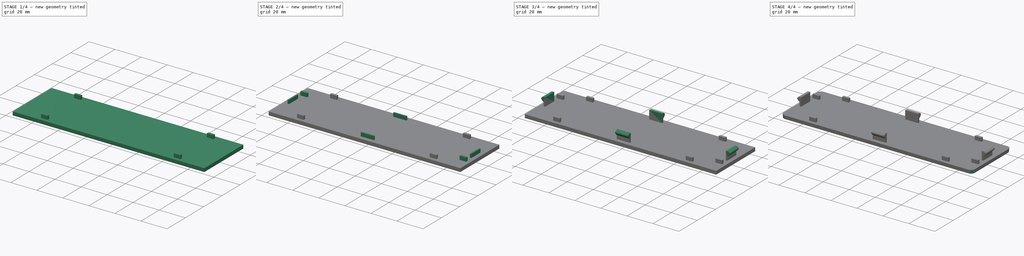
[diagram: build sequence overview — one tinted view per stage of 4, left to right]
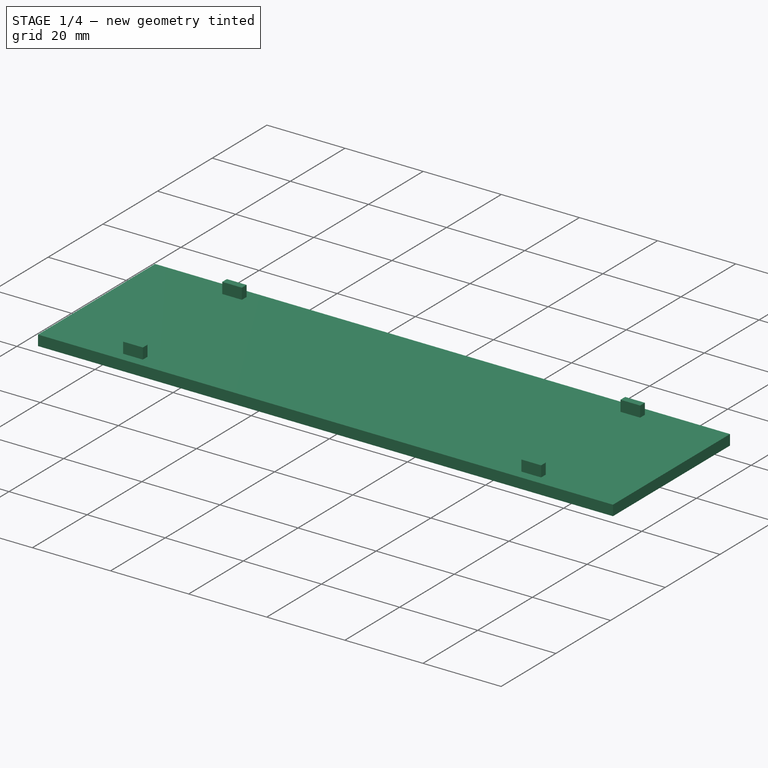
[diagram: stage 1 of 4 — iso view after this stage's code; geometry added in this stage tinted green]
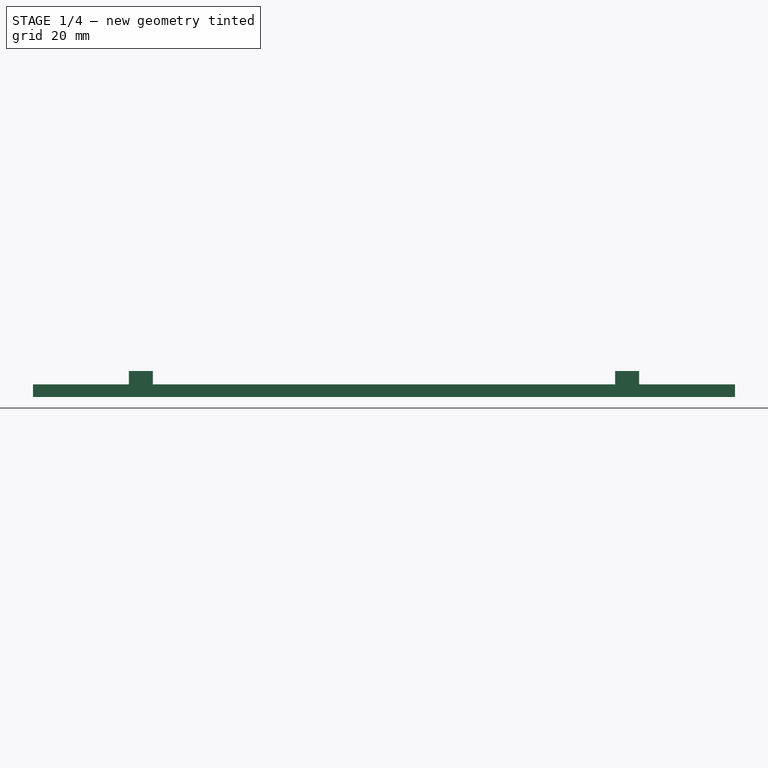
[diagram: stage 1 of 4 — front view after this stage's code; geometry added in this stage tinted green]
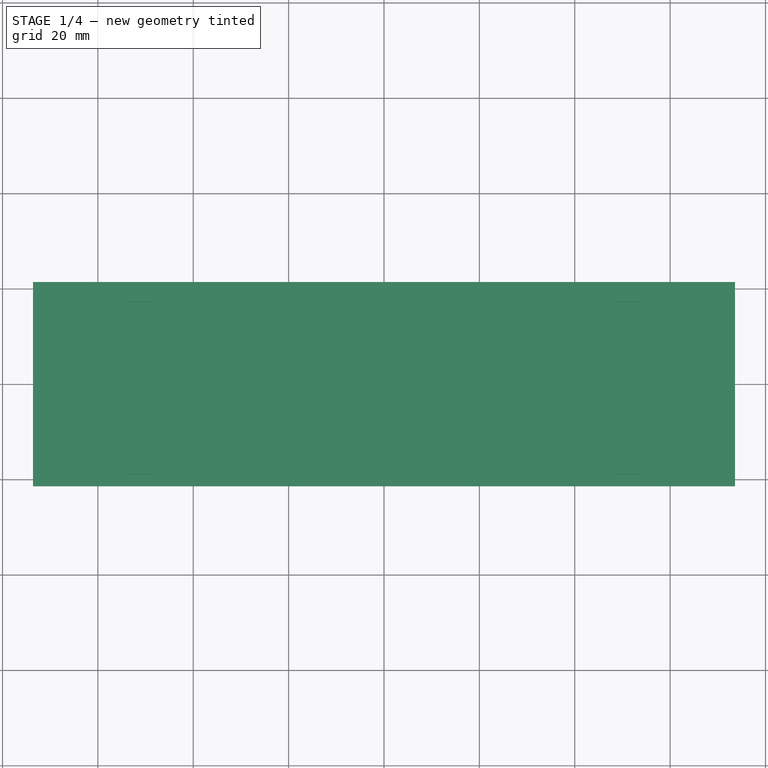
[diagram: stage 1 of 4 — top view after this stage's code; geometry added in this stage tinted green]
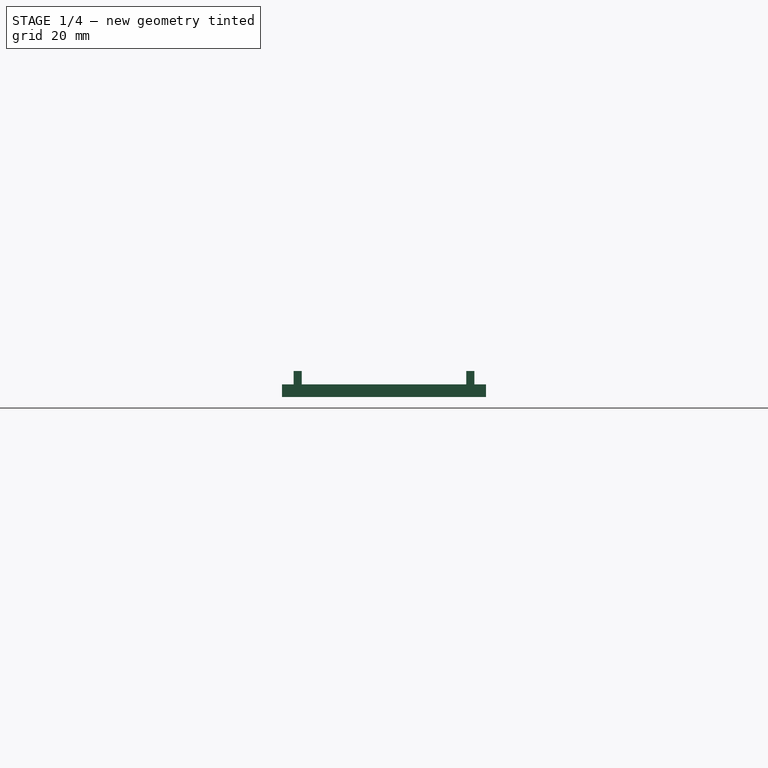
[diagram: stage 1 of 4 — right view after this stage's code; geometry added in this stage tinted green]
FCSTD DOCUMENT  (FreeCAD 1.0R39109 (Git))
Label: blanking_plate
License: All rights reserved
LicenseURL: https://en.wikipedia.org/wiki/All_rights_reserved
objects: Sketcher::SketchObject×5, PartDesign::Pad×5, PartDesign::Chamfer×2, Spreadsheet::Sheet×1, PartDesign::Draft×1, PartDesign::Fillet×1, PartDesign::Body×1
note: 38 computed .brp shape members not serialized (recipe doc carries the construction recipe); baked Part::Feature solids carry a one-line shape summary decoded from their .brp

FEATURE [Spreadsheet::Sheet] Spreadsheet  label="Measurements"
  cells = A1='Plate; A2='Width; B2(Width)=147.2; A3='Height; B3(Height)=42.8; A4='Thick; B4(Thick)=2.66; A6='4 main stubs; A7='Main_Stub_Distance_From_Top; B7(Main_Stub_Distance_From_Top)=2.44; A8='Main_Stub_Distance_From_Side; B8(Main_Stub_Distance_From_Side)=20.1; A9='Main_Stub_Width; B9(Main_Stub_Width)=5.04; A10='Main_Stub_Height; B10(Main_Stub_Height)=1.7; A11='Main_Stub_Thick; B11(Main_Stub_Thick)=2.8; A13='2 auxillary stubs; A14='Aux_Stub_Distance_From_Side; B14(Aux_Stub_Distance_From_Side)=2.56; A15='Aux_Stub_Distance_From_Top; B15(Aux_Stub_Distance_From_Top)=10; A16='Aux_Stub_Width; B16(Aux_Stub_Width)=5.04; A17='Aux_Stub_Height; B17(Aux_Stub_Height)=1.7; A18='Aux_Stub_Thick; B18(Aux_Stub_Thick)==Main_Stub_Thick; A20='Tabs; A21='Centered Top To Bottom; A22='Centered Left To Right; A23='Tab_Distance_From_Wide_Edge; B23(Tab_Distance_From_Wide_Edge)=3.016; A25='Tab_Width; B25(Tab_Width)=10.05; A26='Tab_Height_Lower; B26(Tab_Height_Lower)=1.12; A27='Tab_Height_Upper; B27(Tab_Height_Upper)=2.92; A28='Tab_Thick_Lower; B28(Tab_Thick_Lower)==Main_Stub_Thick; A29='Tab_Thick_Upper; B29(Tab_Thick_Upper)==Tab_Thick_Total - Tab_Thick_Lower; A30='Tab_Thick_Total; B30(Tab_Thick_Total)=6.465
FEATURE [Sketcher::SketchObject] Sketch  label="Plate_Sketch"
  ArcFitTolerance = 0
  AttachmentSupport = -> [XY_Plane]
  FullyConstrained = true
  MakeInternals = false
  MapMode = 5
  expr: Constraints[8] = <<Measurements>>.Width
  expr: Constraints[9] = <<Measurements>>.Height
  sketch-geometry (4):
    g0: LineSegment StartX=-73.6 StartY=21.4 StartZ=0 EndX=73.6 EndY=21.4 EndZ=0
    g1: LineSegment StartX=73.6 StartY=21.4 StartZ=0 EndX=73.6 EndY=-21.4 EndZ=0
    g2: LineSegment StartX=73.6 StartY=-21.4 StartZ=0 EndX=-73.6 EndY=-21.4 EndZ=0
    g3: LineSegment StartX=-73.6 StartY=-21.4 StartZ=0 EndX=-73.6 EndY=21.4 EndZ=0
  constraints (11):
    c: Coincident(g0,g1)
    c: Coincident(g1,g2)
    c: Coincident(g2,g3)
    c: Coincident(g3,g0)
    c: Horizontal(g0)
    c: Horizontal(g2)
    c: Vertical(g1)
    c: Vertical(g3)
    c: DistanceX(g0,g0) = 147.2
    c: DistanceY(g3,g3) = 42.8
    c: Symmetric(g0,g1,g-1)
FEATURE [PartDesign::Pad] Pad  label="Plate_Pad"
  Direction = (0,0,1)
  Length = 2.66
  Length2 = 10
  Profile = -> Sketch
  ReferenceAxis = -> Sketch [N_Axis]
  Suppressed = false
  Type = 0
  expr: Length = <<Measurements>>.Thick
FEATURE [Sketcher::SketchObject] Sketch001  label="Main_Stub_Sketch"
  ArcFitTolerance = 0
  AttachmentSupport = -> [Pad]
  ExternalGeometry = -> [Pad]
  FullyConstrained = true
  MakeInternals = false
  MapMode = 5
  Placement = pos=(0,0,2.66) rot=(0,0,1;0rad)
  expr: Constraints[10] = <<Measurements>>.Main_Stub_Distance_From_Top
  expr: Constraints[11] = <<Measurements>>.Main_Stub_Distance_From_Side
  expr: Constraints[36] = <<Measurements>>.Main_Stub_Width
  expr: Constraints[37] = <<Measurements>>.Main_Stub_Height
  expr: Constraints[38] = <<Measurements>>.Main_Stub_Distance_From_Side
  expr: Constraints[39] = <<Measurements>>.Main_Stub_Distance_From_Top
  expr: Constraints[40] = <<Measurements>>.Main_Stub_Width
  expr: Constraints[41] = <<Measurements>>.Main_Stub_Height
  expr: Constraints[42] = <<Measurements>>.Main_Stub_Distance_From_Side
  expr: Constraints[43] = <<Measurements>>.Main_Stub_Distance_From_Top
  expr: Constraints[44] = <<Measurements>>.Main_Stub_Width
  expr: Constraints[45] = <<Measurements>>.Main_Stub_Height
  expr: Constraints[46] = <<Measurements>>.Main_Stub_Distance_From_Side
  expr: Constraints[47] = <<Measurements>>.Main_Stub_Distance_From_Top
  expr: Constraints[8] = <<Measurements>>.Main_Stub_Width
  expr: Constraints[9] = <<Measurements>>.Main_Stub_Height
  sketch-geometry (16):
    g0: LineSegment StartX=-53.5 StartY=18.96 StartZ=0 EndX=-48.46 EndY=18.96 EndZ=0
    g1: LineSegment StartX=-48.46 StartY=18.96 StartZ=0 EndX=-48.46 EndY=17.26 EndZ=0
    g2: LineSegment StartX=-48.46 StartY=17.26 StartZ=0 EndX=-53.5 EndY=17.26 EndZ=0
    g3: LineSegment StartX=-53.5 StartY=17.26 StartZ=0 EndX=-53.5 EndY=18.96 EndZ=0
    g4: LineSegment StartX=48.46 StartY=18.96 StartZ=0 EndX=48.46 EndY=17.26 EndZ=0
    g5: LineSegment StartX=48.46 StartY=17.26 StartZ=0 EndX=53.5 EndY=17.26 EndZ=0
    g6: LineSegment StartX=53.5 StartY=17.26 StartZ=0 EndX=53.5 EndY=18.96 EndZ=0
    g7: LineSegment StartX=53.5 StartY=18.96 StartZ=0 EndX=48.46 EndY=18.96 EndZ=0
    g8: LineSegment StartX=-53.5 StartY=-17.26 StartZ=0 EndX=-53.5 EndY=-18.96 EndZ=0
    g9: LineSegment StartX=-53.5 StartY=-18.96 StartZ=0 EndX=-48.46 EndY=-18.96 EndZ=0
    g10: LineSegment StartX=-48.46 StartY=-18.96 StartZ=0 EndX=-48.46 EndY=-17.26 EndZ=0
    g11: LineSegment StartX=-48.46 StartY=-17.26 StartZ=0 EndX=-53.5 EndY=-17.26 EndZ=0
    g12: LineSegment StartX=48.46 StartY=-17.26 StartZ=0 EndX=48.46 EndY=-18.96 EndZ=0
    g13: LineSegment StartX=48.46 StartY=-18.96 StartZ=0 EndX=53.5 EndY=-18.96 EndZ=0
    g14: LineSegment StartX=53.5 StartY=-18.96 StartZ=0 EndX=53.5 EndY=-17.26 EndZ=0
    g15: LineSegment StartX=53.5 StartY=-17.26 StartZ=0 EndX=48.46 EndY=-17.26 EndZ=0
  constraints (48):
    c: Coincident(g0,g1)
    c: Coincident(g1,g2)
    c: Coincident(g2,g3)
    c: Coincident(g3,g0)
    c: Horizontal(g0)
    c: Horizontal(g2)
    c: Vertical(g1)
    c: Vertical(g3)
    c: DistanceX(g0,g0) = 5.04
    c: DistanceY(g3,g3) = 1.7
    c: DistanceY(g0,g-3) = 2.44
    c: DistanceX(g-3,g0) = 20.1
    c: Coincident(g4,g5)
    c: Coincident(g5,g6)
    c: Coincident(g6,g7)
    c: Coincident(g7,g4)
    c: Vertical(g4)
    c: Vertical(g6)
    c: Horizontal(g5)
    c: Horizontal(g7)
    c: Coincident(g8,g9)
    c: Coincident(g9,g10)
    c: Coincident(g10,g11)
    c: Coincident(g11,g8)
    c: Vertical(g8)
    c: Vertical(g10)
    c: Horizontal(g9)
    c: Horizontal(g11)
    c: Coincident(g12,g13)
    c: Coincident(g13,g14)
    c: Coincident(g14,g15)
    c: Coincident(g15,g12)
    c: Vertical(g12)
    c: Vertical(g14)
    c: Horizontal(g13)
    c: Horizontal(g15)
    c: DistanceX(g7,g7) = 5.04
    c: DistanceY(g4,g4) = 1.7
    c: DistanceX(g6,g-4) = 20.1
    c: DistanceY(g6,g-4) = 2.44
    c: DistanceX(g11,g11) = 5.04
    c: DistanceY(g8,g8) = 1.7
    c: DistanceX(g-5,g8) = 20.1
    c: DistanceY(g-5,g8) = 2.44
    c: DistanceX(g15,g15) = 5.04
    c: DistanceY(g12,g12) = 1.7
    c: DistanceX(g13,g-6) = 20.1
    c: DistanceY(g-6,g13) = 2.44
FEATURE [PartDesign::Pad] Pad001  label="Main_Stub_Pad"
  BaseFeature = -> Pad
  Direction = (0,0,1)
  Length = 2.8
  Length2 = 10
  Profile = -> Sketch001
  ReferenceAxis = -> Sketch001 [N_Axis]
  Suppressed = false
  Type = 0
  expr: Length = <<Measurements>>.Main_Stub_Thick
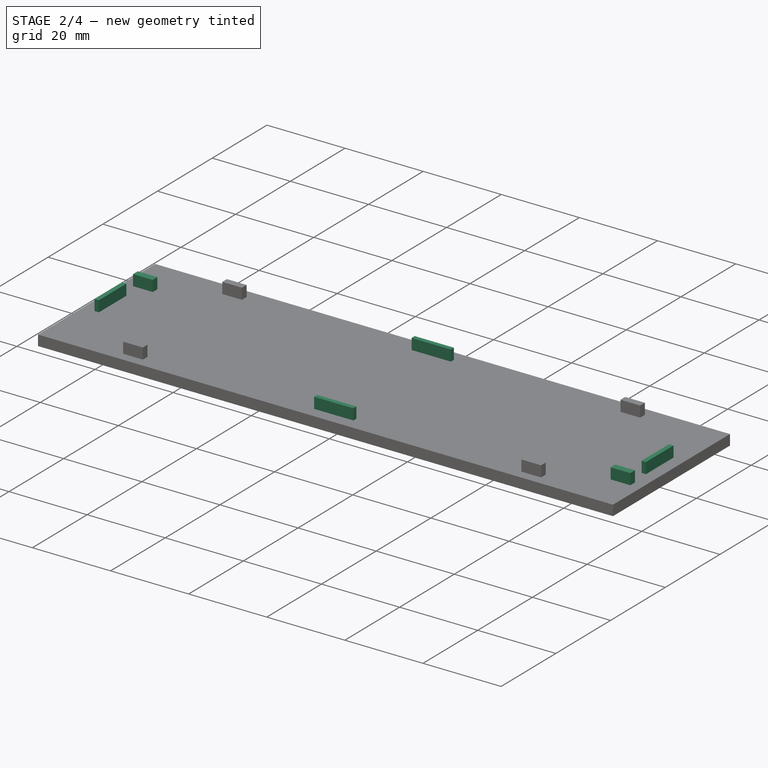
[diagram: stage 2 of 4 — iso view after this stage's code; geometry added in this stage tinted green]
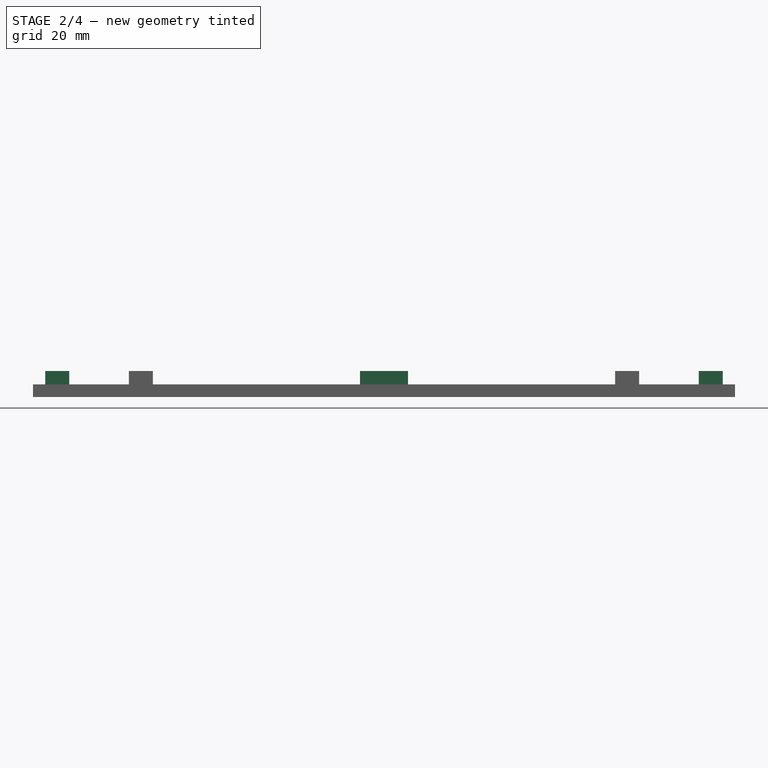
[diagram: stage 2 of 4 — front view after this stage's code; geometry added in this stage tinted green]
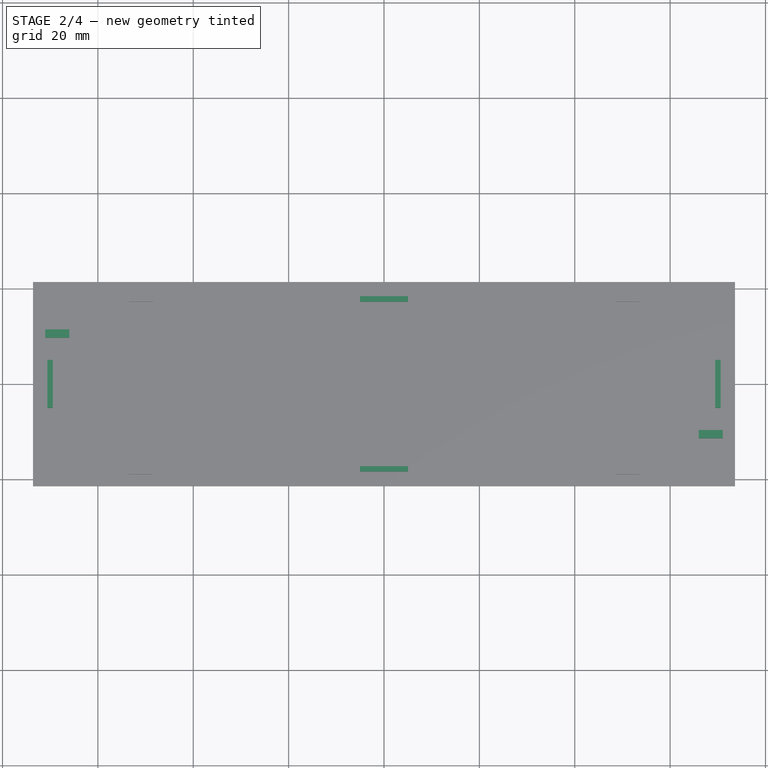
[diagram: stage 2 of 4 — top view after this stage's code; geometry added in this stage tinted green]
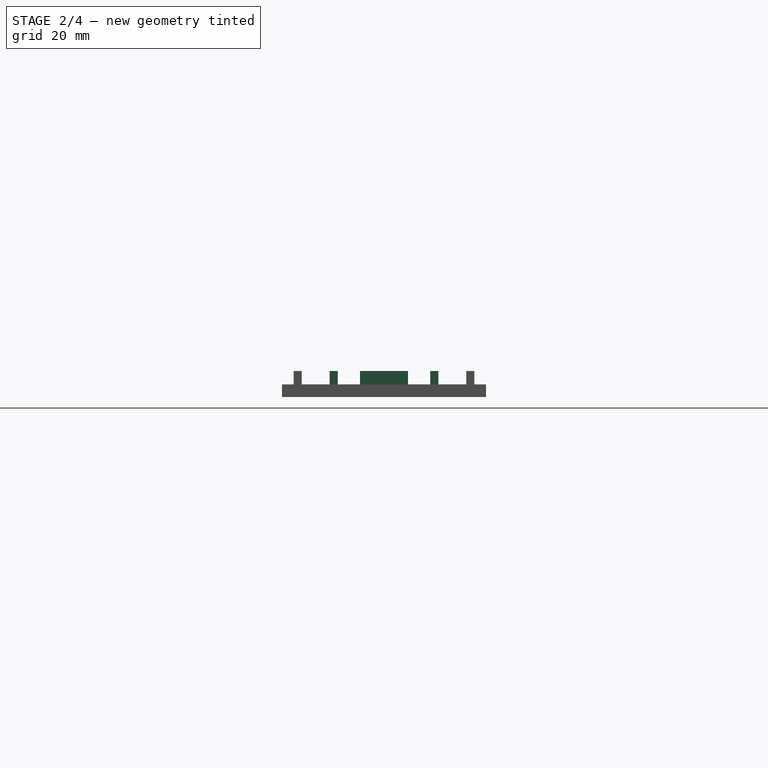
[diagram: stage 2 of 4 — right view after this stage's code; geometry added in this stage tinted green]
FEATURE [Sketcher::SketchObject] Sketch002  label="Aux_Stub_Sketch"
  ArcFitTolerance = 1e-06
  AttachmentSupport = -> [Pad001]
  ExternalGeometry = -> [Pad001]
  FullyConstrained = true
  MakeInternals = false
  MapMode = 5
  Placement = pos=(0,0,2.66) rot=(0,0,1;0rad)
  expr: Constraints[16] = <<Measurements>>.Aux_Stub_Width
  expr: Constraints[17] = <<Measurements>>.Aux_Stub_Height
  expr: Constraints[18] = <<Measurements>>.Aux_Stub_Distance_From_Side
  expr: Constraints[19] = <<Measurements>>.Aux_Stub_Distance_From_Top
  expr: Constraints[20] = <<Measurements>>.Aux_Stub_Width
  expr: Constraints[21] = <<Measurements>>.Aux_Stub_Height
  expr: Constraints[22] = <<Measurements>>.Aux_Stub_Distance_From_Side
  expr: Constraints[23] = <<Measurements>>.Aux_Stub_Distance_From_Top
  sketch-geometry (8):
    g0: LineSegment StartX=-71.04 StartY=11.4 StartZ=0 EndX=-71.04 EndY=9.7 EndZ=0
    g1: LineSegment StartX=-71.04 StartY=9.7 StartZ=0 EndX=-66 EndY=9.7 EndZ=0
    g2: LineSegment StartX=-66 StartY=9.7 StartZ=0 EndX=-66 EndY=11.4 EndZ=0
    g3: LineSegment StartX=-66 StartY=11.4 StartZ=0 EndX=-71.04 EndY=11.4 EndZ=0
    g4: LineSegment StartX=66 StartY=-9.7 StartZ=0 EndX=66 EndY=-11.4 EndZ=0
    g5: LineSegment StartX=66 StartY=-11.4 StartZ=0 EndX=71.04 EndY=-11.4 EndZ=0
    g6: LineSegment StartX=71.04 StartY=-11.4 StartZ=0 EndX=71.04 EndY=-9.7 EndZ=0
    g7: LineSegment StartX=71.04 StartY=-9.7 StartZ=0 EndX=66 EndY=-9.7 EndZ=0
  constraints (24):
    c: Coincident(g0,g1)
    c: Coincident(g1,g2)
    c: Coincident(g2,g3)
    c: Coincident(g3,g0)
    c: Vertical(g0)
    c: Vertical(g2)
    c: Horizontal(g1)
    c: Horizontal(g3)
    c: Coincident(g4,g5)
    c: Coincident(g5,g6)
    c: Coincident(g6,g7)
    c: Coincident(g7,g4)
    c: Vertical(g4)
    c: Vertical(g6)
    c: Horizontal(g5)
    c: Horizontal(g7)
    c: DistanceX(g3,g3) = 5.04
    c: DistanceY(g0,g0) = 1.7
    c: DistanceX(g-3,g0) = 2.56
    c: DistanceY(g0,g-3) = 10
    c: DistanceX(g7,g7) = 5.04
    c: DistanceY(g4,g4) = 1.7
    c: DistanceX(g5,g-4) = 2.56
    c: DistanceY(g-4,g5) = 10
FEATURE [PartDesign::Pad] Pad002  label="Aux_Stub_Pad"
  BaseFeature = -> Pad001
  Direction = (0,0,1)
  Length = 2.8
  Length2 = 10
  Profile = -> Sketch002
  ReferenceAxis = -> Sketch002 [N_Axis]
  Refine = true
  Suppressed = false
  Type = 0
  expr: Length = <<Measurements>>.Aux_Stub_Thick
FEATURE [Sketcher::SketchObject] Sketch003  label="Tabs_Lower_Sketch"
  ArcFitTolerance = 1e-06
  AttachmentSupport = -> [Pad002]
  ExternalGeometry = -> [Pad002]
  FullyConstrained = true
  MakeInternals = false
  MapMode = 5
  Placement = pos=(0,0,2.66) rot=(0,0,1;0rad)
  expr: Constraints[32] = <<Measurements>>.Tab_Width
  expr: Constraints[33] = <<Measurements>>.Tab_Width
  expr: Constraints[34] = <<Measurements>>.Tab_Width
  expr: Constraints[35] = <<Measurements>>.Tab_Width
  expr: Constraints[36] = <<Measurements>>.Tab_Height_Lower
  expr: Constraints[37] = <<Measurements>>.Tab_Height_Lower
  expr: Constraints[38] = <<Measurements>>.Tab_Height_Lower
  expr: Constraints[39] = <<Measurements>>.Tab_Height_Lower
  expr: Constraints[40] = <<Measurements>>.Tab_Distance_From_Wide_Edge
  expr: Constraints[41] = <<Measurements>>.Tab_Distance_From_Wide_Edge
  expr: Constraints[42] = <<Measurements>>.Tab_Distance_From_Wide_Edge
  expr: Constraints[43] = <<Measurements>>.Tab_Distance_From_Wide_Edge
  sketch-geometry (20):
    g0: LineSegment StartX=-5.025 StartY=18.384 StartZ=0 EndX=-5.025 EndY=17.264 EndZ=0
    g1: LineSegment StartX=-5.025 StartY=17.264 StartZ=0 EndX=5.025 EndY=17.264 EndZ=0
    g2: LineSegment StartX=5.025 StartY=17.264 StartZ=0 EndX=5.025 EndY=18.384 EndZ=0
    g3: LineSegment StartX=5.025 StartY=18.384 StartZ=0 EndX=-5.025 EndY=18.384 EndZ=0
    g4: LineSegment StartX=-70.584 StartY=5.025 StartZ=0 EndX=-70.584 EndY=-5.025 EndZ=0
    g5: LineSegment StartX=-70.584 StartY=-5.025 StartZ=0 EndX=-69.464 EndY=-5.025 EndZ=0
    g6: LineSegment StartX=-69.464 StartY=-5.025 StartZ=0 EndX=-69.464 EndY=5.025 EndZ=0
    g7: LineSegment StartX=-69.464 StartY=5.025 StartZ=0 EndX=-70.584 EndY=5.025 EndZ=0
    g8: LineSegment StartX=-5.025 StartY=-17.264 StartZ=0 EndX=-5.025 EndY=-18.384 EndZ=0
    g9: LineSegment StartX=-5.025 StartY=-18.384 StartZ=0 EndX=5.025 EndY=-18.384 EndZ=0
    g10: LineSegment StartX=5.025 StartY=-18.384 StartZ=0 EndX=5.025 EndY=-17.264 EndZ=0
    g11: LineSegment StartX=5.025 StartY=-17.264 StartZ=0 EndX=-5.025 EndY=-17.264 EndZ=0
    g12: LineSegment StartX=69.464 StartY=5.025 StartZ=0 EndX=69.464 EndY=-5.025 EndZ=0
    g13: LineSegment StartX=69.464 StartY=-5.025 StartZ=0 EndX=70.584 EndY=-5.025 EndZ=0
    g14: LineSegment StartX=70.584 StartY=-5.025 StartZ=0 EndX=70.584 EndY=5.025 EndZ=0
    g15: LineSegment StartX=70.584 StartY=5.025 StartZ=0 EndX=69.464 EndY=5.025 EndZ=0
    g16: GeomPoint X=0 Y=17.264 Z=0
    g17: GeomPoint X=0 Y=-17.264 Z=0
    g18: GeomPoint X=-69.464 Y=0 Z=0
    g19: GeomPoint X=69.464 Y=0 Z=0
  constraints (52):
    c: Coincident(g0,g1)
    c: Coincident(g1,g2)
    c: Coincident(g2,g3)
    c: Coincident(g3,g0)
    c: Vertical(g0)
    c: Vertical(g2)
    c: Horizontal(g1)
    c: Horizontal(g3)
    c: Coincident(g4,g5)
    c: Coincident(g5,g6)
    c: Coincident(g6,g7)
    c: Coincident(g7,g4)
    c: Vertical(g4)
    c: Vertical(g6)
    c: Horizontal(g5)
    c: Horizontal(g7)
    c: Coincident(g8,g9)
    c: Coincident(g9,g10)
    c: Coincident(g10,g11)
    c: Coincident(g11,g8)
    c: Vertical(g8)
    c: Vertical(g10)
    c: Horizontal(g9)
    c: Horizontal(g11)
    c: Coincident(g12,g13)
    c: Coincident(g13,g14)
    c: Coincident(g14,g15)
    c: Coincident(g15,g12)
    c: Vertical(g12)
    c: Vertical(g14)
    c: Horizontal(g13)
    c: Horizontal(g15)
    c: DistanceX(g3,g3) = 10.05
    c: DistanceX(g11,g11) = 10.05
    c: DistanceY(g12,g12) = 10.05
    c: DistanceY(g6,g6) = 10.05
    c: DistanceX(g7,g7) = 1.12
    c: DistanceY(g0,g0) = 1.12
    c: DistanceY(g8,g8) = 1.12
    c: DistanceX(g13,g13) = 1.12
    c: DistanceY(g0,g-3) = 3.016
    c: DistanceY(g-4,g9) = 3.016
    c: DistanceX(g13,g-4) = 3.016
    c: DistanceX(g-3,g4) = 3.016
    c: Symmetric(g12,g12,g19)
    c: Symmetric(g0,g1,g16)
    c: Symmetric(g8,g10,g17)
    c: Symmetric(g6,g5,g18)
    c: Horizontal(g18,g-1)
    c: Vertical(g16,g17)
    c: Vertical(g17,g-1)
    c: Horizontal(g19,g-1)
FEATURE [PartDesign::Pad] Pad003  label="Tabs_Lower_Pad"
  BaseFeature = -> Pad002
  Direction = (0,0,1)
  Length = 2.8
  Length2 = 10
  Profile = -> Sketch003
  ReferenceAxis = -> Sketch003 [N_Axis]
  Refine = true
  Suppressed = false
  Type = 0
  expr: Length = <<Measurements>>.Tab_Thick_Lower
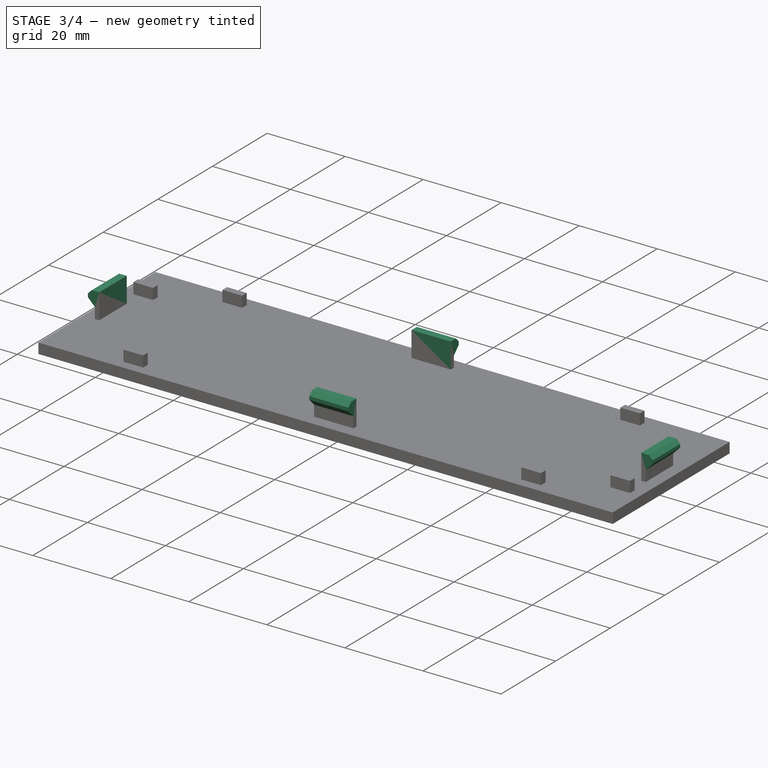
[diagram: stage 3 of 4 — iso view after this stage's code; geometry added in this stage tinted green]
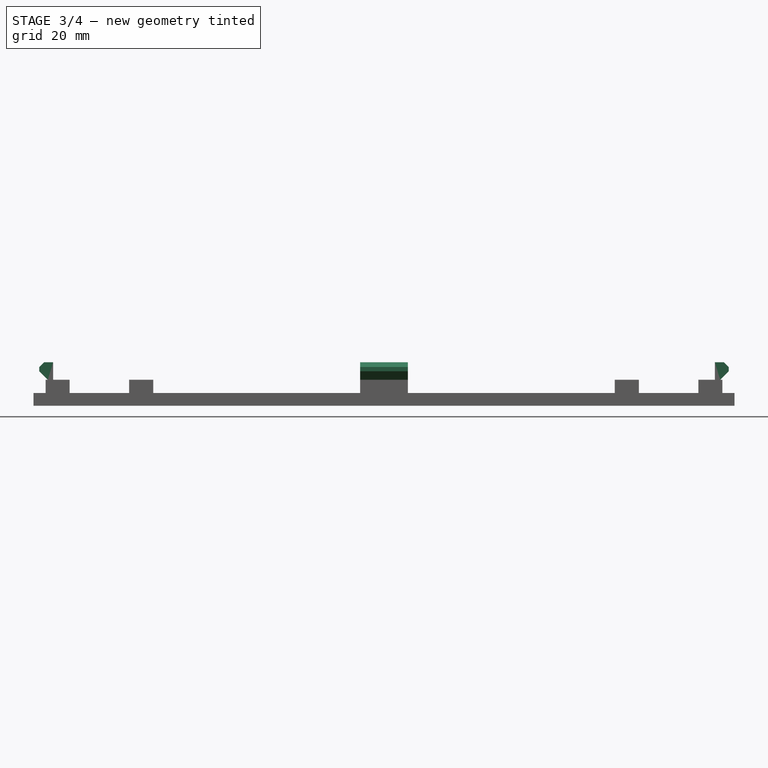
[diagram: stage 3 of 4 — front view after this stage's code; geometry added in this stage tinted green]
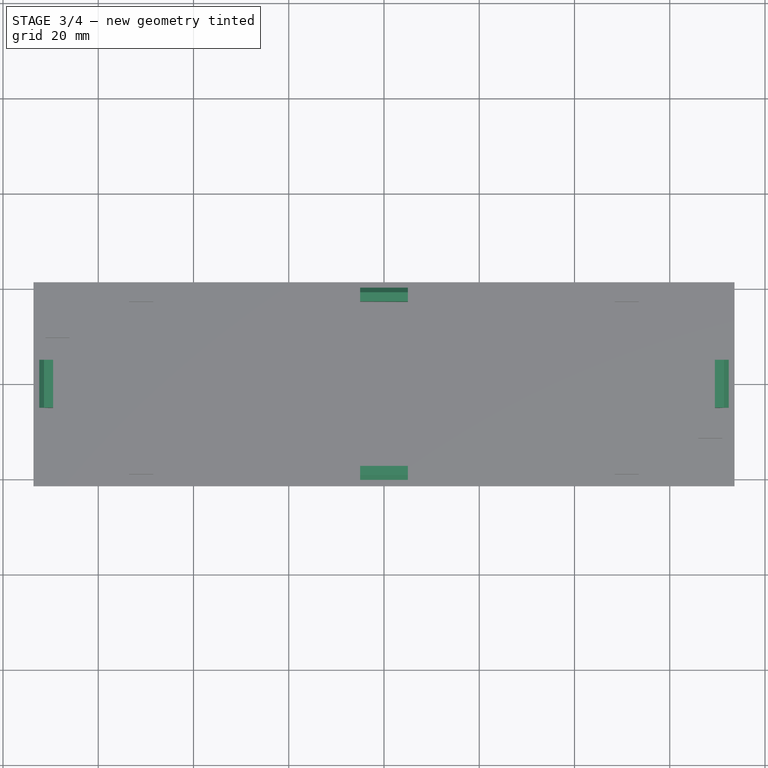
[diagram: stage 3 of 4 — top view after this stage's code; geometry added in this stage tinted green]
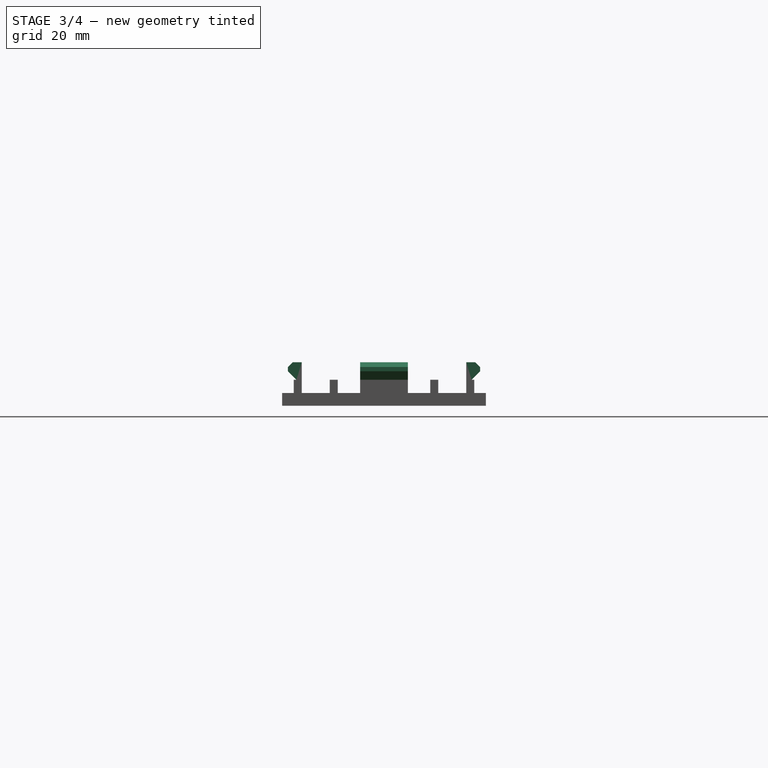
[diagram: stage 3 of 4 — right view after this stage's code; geometry added in this stage tinted green]
FEATURE [Sketcher::SketchObject] Sketch004  label="Tabs_Upper_Sketch"
  ArcFitTolerance = 1e-06
  AttachmentSupport = -> [Pad003]
  ExternalGeometry = -> [Pad003]
  FullyConstrained = true
  MakeInternals = false
  MapMode = 5
  Placement = pos=(0,0,5.46) rot=(0,0,1;0rad)
  expr: Constraints[32] = <<Measurements>>.Tab_Height_Upper
  expr: Constraints[33] = <<Measurements>>.Tab_Height_Upper
  expr: Constraints[34] = <<Measurements>>.Tab_Height_Upper
  expr: Constraints[35] = <<Measurements>>.Tab_Height_Upper
  sketch-geometry (16):
    g0: LineSegment StartX=-5.025 StartY=17.264 StartZ=0 EndX=5.025 EndY=17.264 EndZ=0
    g1: LineSegment StartX=5.025 StartY=17.264 StartZ=0 EndX=5.025 EndY=20.184 EndZ=0
    g2: LineSegment StartX=-5.025 StartY=17.264 StartZ=0 EndX=-5.025 EndY=20.184 EndZ=0
    g3: LineSegment StartX=-5.025 StartY=20.184 StartZ=0 EndX=5.025 EndY=20.184 EndZ=0
    g4: LineSegment StartX=-69.464 StartY=5.025 StartZ=0 EndX=-72.384 EndY=5.025 EndZ=0
    g5: LineSegment StartX=-69.464 StartY=-5.025 StartZ=0 EndX=-72.384 EndY=-5.025 EndZ=0
    g6: LineSegment StartX=-72.384 StartY=5.025 StartZ=0 EndX=-72.384 EndY=-5.025 EndZ=0
    g7: LineSegment StartX=-5.025 StartY=-17.264 StartZ=0 EndX=5.025 EndY=-17.264 EndZ=0
    g8: LineSegment StartX=-5.025 StartY=-17.264 StartZ=0 EndX=-5.025 EndY=-20.184 EndZ=0
    g9: LineSegment StartX=5.025 StartY=-17.264 StartZ=0 EndX=5.025 EndY=-20.184 EndZ=0
    g10: LineSegment StartX=-5.025 StartY=-20.184 StartZ=0 EndX=5.025 EndY=-20.184 EndZ=0
    g11: LineSegment StartX=69.464 StartY=5.025 StartZ=0 EndX=72.384 EndY=5.025 EndZ=0
    g12: LineSegment StartX=69.464 StartY=-5.025 StartZ=0 EndX=72.384 EndY=-5.025 EndZ=0
    g13: LineSegment StartX=72.384 StartY=5.025 StartZ=0 EndX=72.384 EndY=-5.025 EndZ=0
    g14: LineSegment StartX=-69.464 StartY=5.025 StartZ=0 EndX=-69.464 EndY=-5.025 EndZ=0
    g15: LineSegment StartX=69.464 StartY=5.025 StartZ=0 EndX=69.464 EndY=-5.025 EndZ=0
  constraints (40):
    c: Coincident(g0,g-9)
    c: Coincident(g0,g-10)
    c: Coincident(g1,g0)
    c: Vertical(g1)
    c: Coincident(g2,g0)
    c: Vertical(g2)
    c: Coincident(g3,g2)
    c: Coincident(g3,g1)
    c: Horizontal(g3)
    c: Coincident(g4,g-3)
    c: Horizontal(g4)
    c: Coincident(g5,g-4)
    c: Horizontal(g5)
    c: Coincident(g6,g4)
    c: Coincident(g6,g5)
    c: Vertical(g6)
    c: Coincident(g7,g-5)
    c: Coincident(g7,g-6)
    c: Coincident(g8,g7)
    c: Vertical(g8)
    c: Coincident(g9,g7)
    c: Vertical(g9)
    c: Coincident(g10,g8)
    c: Coincident(g10,g9)
    c: Horizontal(g10)
    c: Coincident(g11,g-8)
    c: Horizontal(g11)
    c: Coincident(g12,g-7)
    c: Horizontal(g12)
    c: Coincident(g13,g11)
    c: Coincident(g13,g12)
    c: Vertical(g13)
    c: DistanceY(g1,g1) = 2.92
    c: DistanceX(g11,g11) = 2.92
    c: DistanceY(g8,g8) = 2.92
    c: DistanceX(g4,g4) = 2.92
    c: Coincident(g14,g4)
    c: Coincident(g14,g5)
    c: Coincident(g15,g11)
    c: Coincident(g15,g12)
FEATURE [PartDesign::Pad] Pad004  label="Tabs_Upper_Pad"
  BaseFeature = -> Pad003
  Direction = (0,0,1)
  Length = 3.665
  Length2 = 10
  Profile = -> Sketch004
  ReferenceAxis = -> Sketch004 [N_Axis]
  Refine = true
  Suppressed = false
  Type = 0
  expr: Length = <<Measurements>>.Tab_Thick_Upper
FEATURE [PartDesign::Chamfer] Chamfer  label="Tab_Lower_Chamfer"
  Angle = 45
  Base = -> Pad004 [Edge123,Edge114,Edge117,Edge120]
  BaseFeature = -> Pad004
  ChamferType = 0
  FlipDirection = false
  Refine = true
  Size = 1.79
  Size2 = 1
  SupportTransform = false
  Suppressed = false
  UseAllEdges = false
FEATURE [PartDesign::Chamfer] Chamfer001  label="Tab_Upper_Chamfer"
  Angle = 45
  Base = -> Chamfer [Edge164,Edge162,Edge19,Edge166]
  BaseFeature = -> Chamfer
  ChamferType = 0
  FlipDirection = false
  Refine = true
  Size = 1
  Size2 = 1
  SupportTransform = false
  Suppressed = false
  UseAllEdges = false
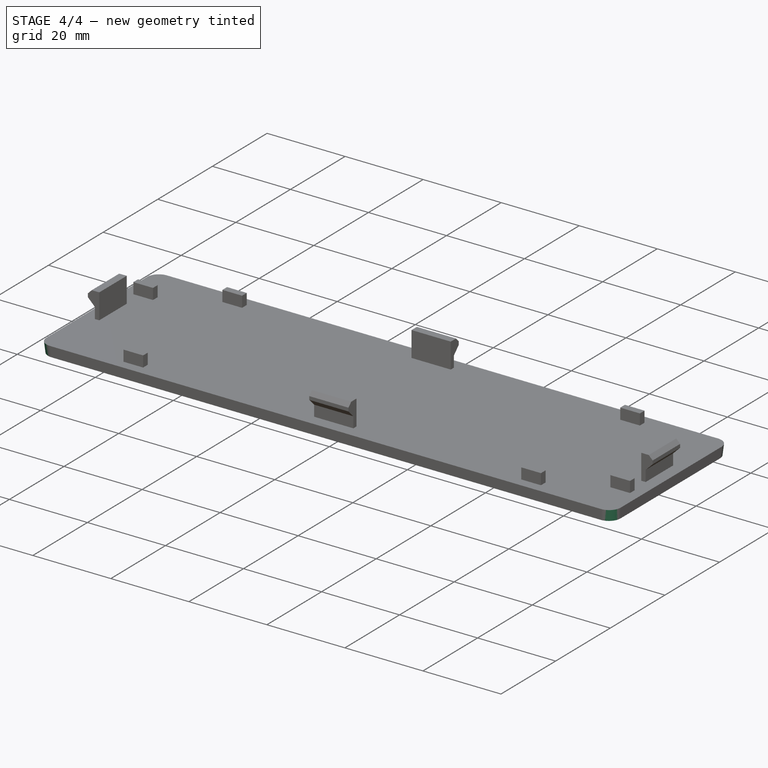
[diagram: stage 4 of 4 — iso view after this stage's code; geometry added in this stage tinted green]
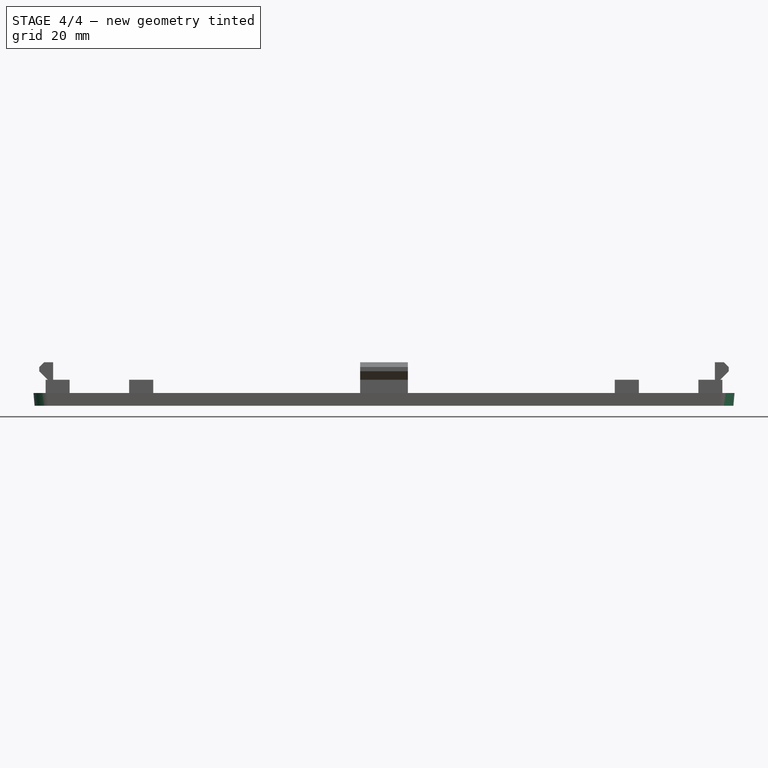
[diagram: stage 4 of 4 — front view after this stage's code; geometry added in this stage tinted green]
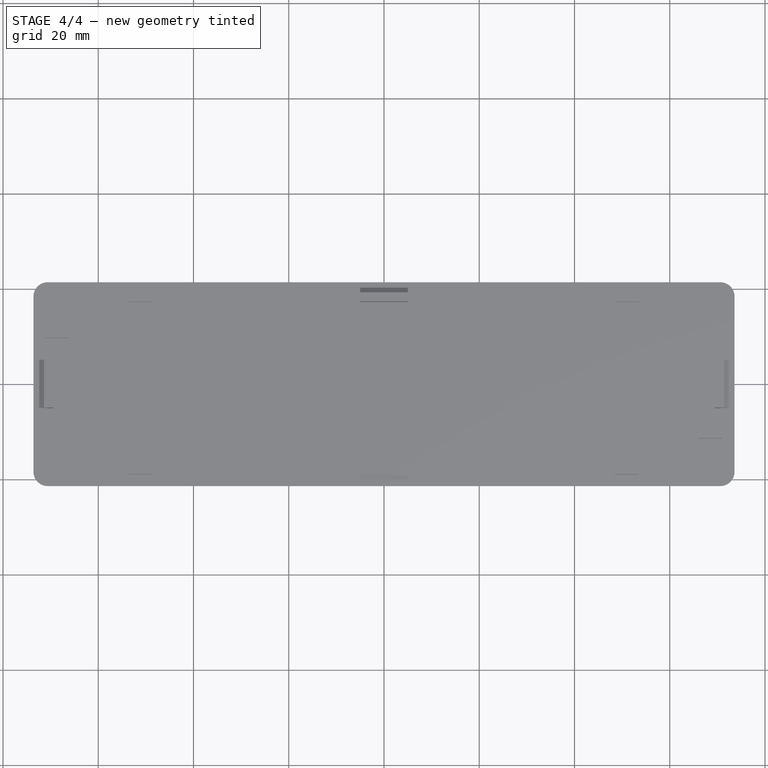
[diagram: stage 4 of 4 — top view after this stage's code; geometry added in this stage tinted green]
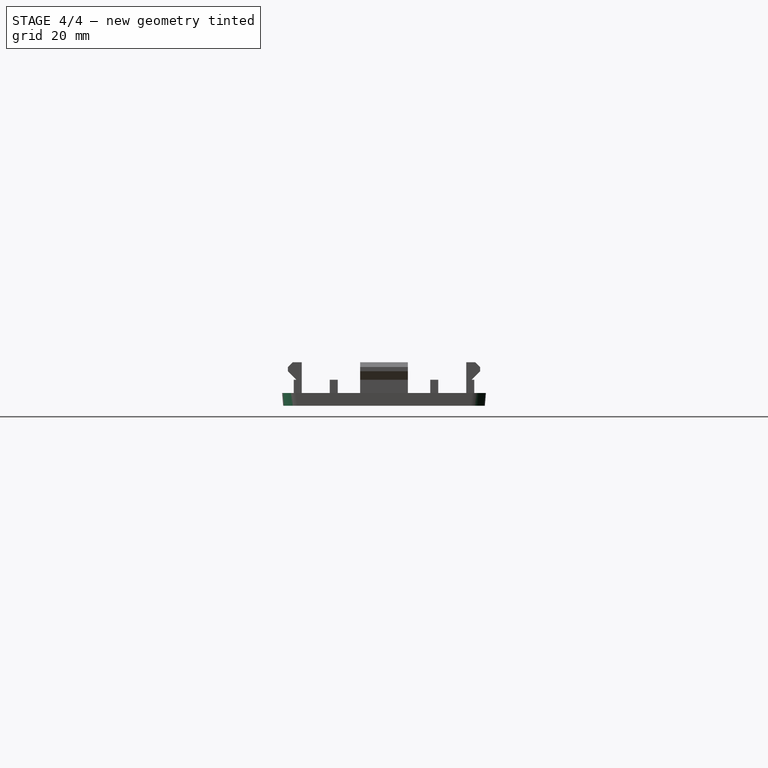
[diagram: stage 4 of 4 — right view after this stage's code; geometry added in this stage tinted green]
FEATURE [PartDesign::Draft] Draft  label="Plate_Draft"
  Angle = 5
  Base = -> Chamfer001 [Face14,Face13,Face11,Face12]
  BaseFeature = -> Chamfer001
  NeutralPlane = -> Chamfer001 [Face9]
  Refine = true
  Reversed = true
  SupportTransform = false
  Suppressed = false
FEATURE [PartDesign::Fillet] Fillet  label="Plate_Fillet"
  Base = -> Draft [Edge65,Edge66,Edge68,Edge70]
  BaseFeature = -> Draft
  Radius = 3
  Refine = true
  SupportTransform = false
  Suppressed = false
  UseAllEdges = false
FEATURE [PartDesign::Body] Body  label="PCjrBlankingPlate"
  AllowCompound = false
  Group = -> [Sketch,Pad,Sketch001,Pad001,Sketch002,Pad002,Sketch003,Pad003,Sketch004,Pad004,Chamfer,Chamfer001,Draft,Fillet]
  Origin = -> Origin
  Tip = -> Fillet
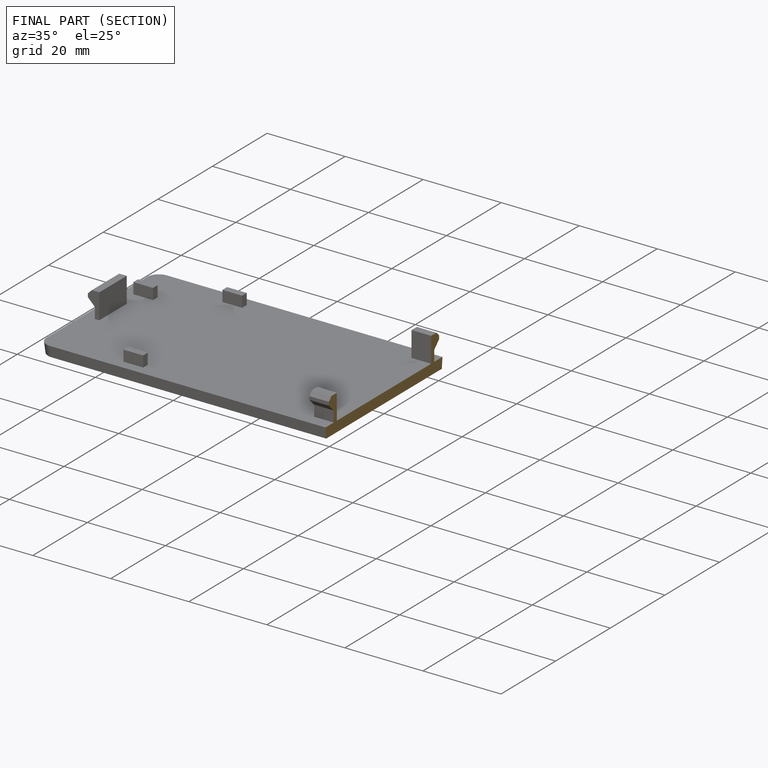
[diagram: finished part — half-section view (interior)]
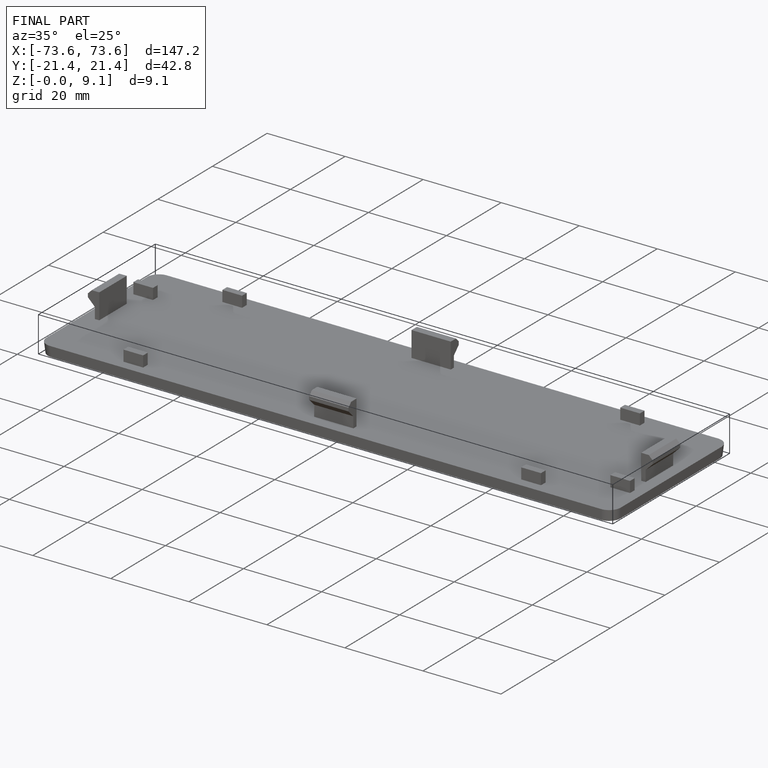
[diagram: finished part — iso view with bounding-box wireframe]
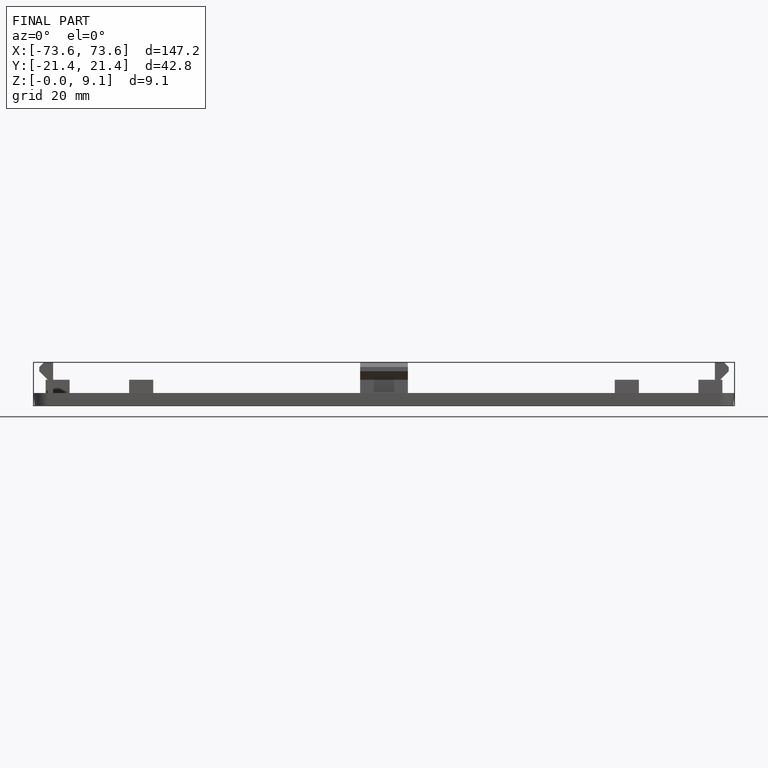
[diagram: finished part — front view with bounding-box wireframe]
